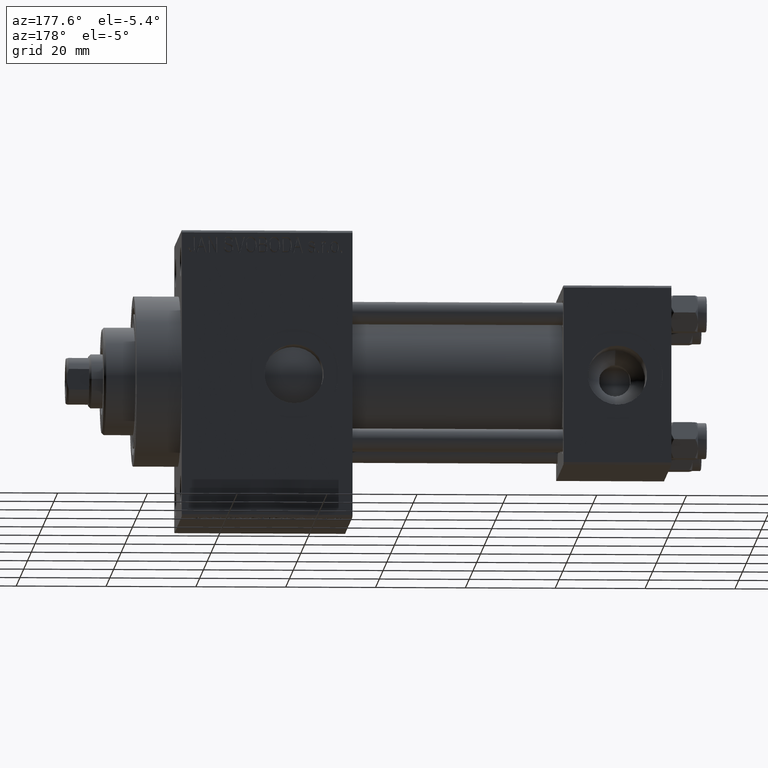
[diagram: clean part render]
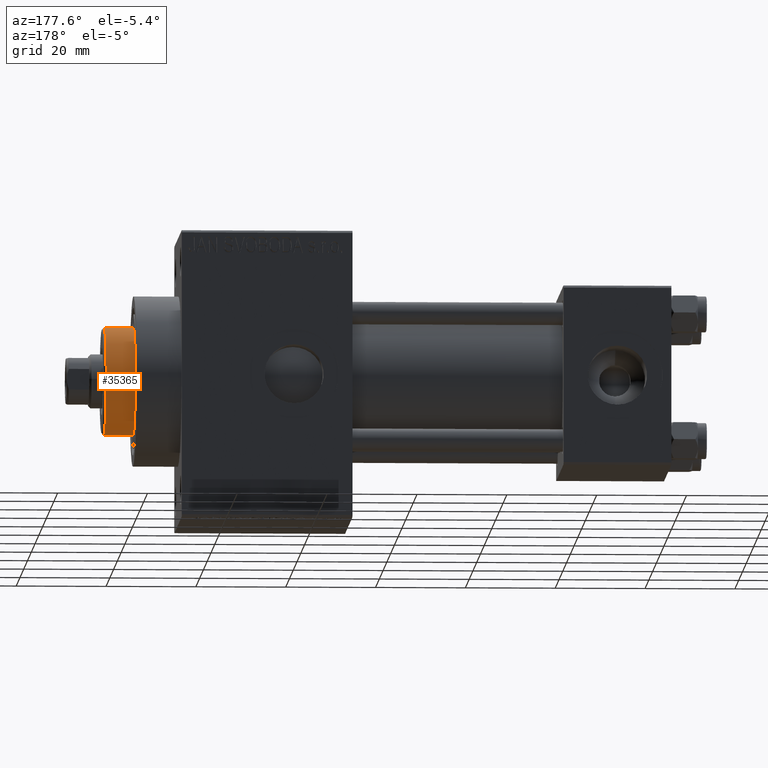
[diagram: same view with one face highlighted and labeled with its STEP entity id]
A machine part, auxiliary view. The second image highlights one B-rep face of the part: STEP entity #35365.
In plain terms, the highlighted cylindrical surface (partial cylindrical patch) has radius 12 mm, axis along (-1, 0, 0).
Its self-contained STEP definition (entity closure, byte-faithful):
#1856 = CARTESIAN_POINT ( 'NONE',  ( 12.00000000000000178, 1.469576158976824144E-15, 49.76000000000000512 ) ) ;
#4243 = CARTESIAN_POINT ( 'NONE',  ( -12.00000000000000178, 0.000000000000000000, 50.25999999999999801 ) ) ;
#4448 = DIRECTION ( 'NONE',  ( 1.000000000000000000, 0.000000000000000000, 0.000000000000000000 ) ) ;
#5217 = DIRECTION ( 'NONE',  ( 0.000000000000000000, 0.000000000000000000, -1.000000000000000000 ) ) ;
#6516 = FACE_OUTER_BOUND ( 'NONE', #31262, .T. ) ;
#8171 = CARTESIAN_POINT ( 'NONE',  ( 0.000000000000000000, 0.000000000000000000, 43.25999999999999801 ) ) ;
#8255 = VECTOR ( 'NONE', #8726, 1000.000000000000000 ) ;
#8726 = DIRECTION ( 'NONE',  ( -0.000000000000000000, -0.000000000000000000, -1.000000000000000000 ) ) ;
#12162 = DIRECTION ( 'NONE',  ( -0.000000000000000000, -0.000000000000000000, -1.000000000000000000 ) ) ;
#13280 = ORIENTED_EDGE ( 'NONE', *, *, #22121, .T. ) ;
#13924 = DIRECTION ( 'NONE',  ( -0.000000000000000000, -0.000000000000000000, -1.000000000000000000 ) ) ;
#17700 = EDGE_CURVE ( 'NONE', #47766, #25053, #19340, .T. ) ;
#19340 = LINE ( 'NONE', #4243, #20978 ) ;
#19864 = LINE ( 'NONE', #31969, #8255 ) ;
#20173 = EDGE_CURVE ( 'NONE', #28004, #47766, #32790, .T. ) ;
#20313 = DIRECTION ( 'NONE',  ( 1.000000000000000000, 0.000000000000000000, 0.000000000000000000 ) ) ;
#20978 = VECTOR ( 'NONE', #12162, 1000.000000000000000 ) ;
#21783 = CIRCLE ( 'NONE', #38406, 12.00000000000000178 ) ;
#22121 = EDGE_CURVE ( 'NONE', #25053, #32914, #21783, .T. ) ;
#23300 = AXIS2_PLACEMENT_3D ( 'NONE', #32434, #5217, #20313 ) ;
#25053 = VERTEX_POINT ( 'NONE', #37315 ) ;
#27502 = ORIENTED_EDGE ( 'NONE', *, *, #41672, .F. ) ;
#28004 = VERTEX_POINT ( 'NONE', #1856 ) ;
#28044 = CARTESIAN_POINT ( 'NONE',  ( -12.00000000000000178, 0.000000000000000000, 49.76000000000000512 ) ) ;
#29033 = DIRECTION ( 'NONE',  ( -1.000000000000000000, 0.000000000000000000, 0.000000000000000000 ) ) ;
#31262 = EDGE_LOOP ( 'NONE', ( #27502, #44687, #31324, #13280 ) ) ;
#31324 = ORIENTED_EDGE ( 'NONE', *, *, #17700, .T. ) ;
#31969 = CARTESIAN_POINT ( 'NONE',  ( 12.00000000000000178, 1.469576158976824144E-15, 50.25999999999999801 ) ) ;
#32434 = CARTESIAN_POINT ( 'NONE',  ( 0.000000000000000000, 0.000000000000000000, 49.76000000000000512 ) ) ;
#32742 = CYLINDRICAL_SURFACE ( 'NONE', #46655, 12.00000000000000178 ) ;
#32790 = CIRCLE ( 'NONE', #23300, 12.00000000000000178 ) ;
#32914 = VERTEX_POINT ( 'NONE', #47756 ) ;
#35365 = ADVANCED_FACE ( 'NONE', ( #6516 ), #32742, .T. ) ;
#37315 = CARTESIAN_POINT ( 'NONE',  ( -12.00000000000000178, 0.000000000000000000, 43.25999999999999801 ) ) ;
#38406 = AXIS2_PLACEMENT_3D ( 'NONE', #8171, #48765, #4448 ) ;
#41672 = EDGE_CURVE ( 'NONE', #28004, #32914, #19864, .T. ) ;
#44687 = ORIENTED_EDGE ( 'NONE', *, *, #20173, .T. ) ;
#46655 = AXIS2_PLACEMENT_3D ( 'NONE', #47833, #13924, #29033 ) ;
#47756 = CARTESIAN_POINT ( 'NONE',  ( 12.00000000000000178, 1.469576158976824144E-15, 43.25999999999999801 ) ) ;
#47766 = VERTEX_POINT ( 'NONE', #28044 ) ;
#47833 = CARTESIAN_POINT ( 'NONE',  ( 0.000000000000000000, 0.000000000000000000, 50.25999999999999801 ) ) ;
#48765 = DIRECTION ( 'NONE',  ( 0.000000000000000000, 0.000000000000000000, 1.000000000000000000 ) ) ;